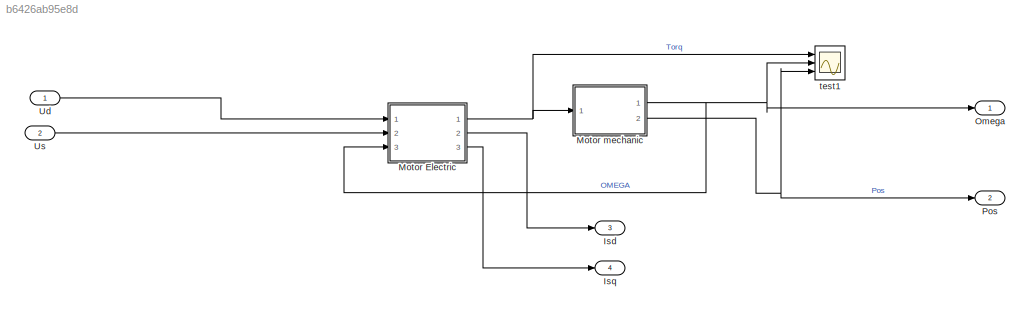
MODEL slx_b6426ab95e8d
KIND library
CONFIG AbsTol = auto
CONFIG FixedStep = auto
CONFIG MaxStep = auto
CONFIG MinStep = auto
CONFIG RelTol = 1e-3
CONFIG SampleTimeConstraint = Unconstrained
CONFIG Solver = ode45
CONFIG SolverMode = Auto
CONFIG SolverName = ode45
CONFIG StartTime = 0.0
CONFIG StopTime = 10.0
BLOCK [Outport] Isd
  IconDisplay = Port number
  Port = 3
BLOCK [Outport] Isq
  IconDisplay = Port number
  Port = 4
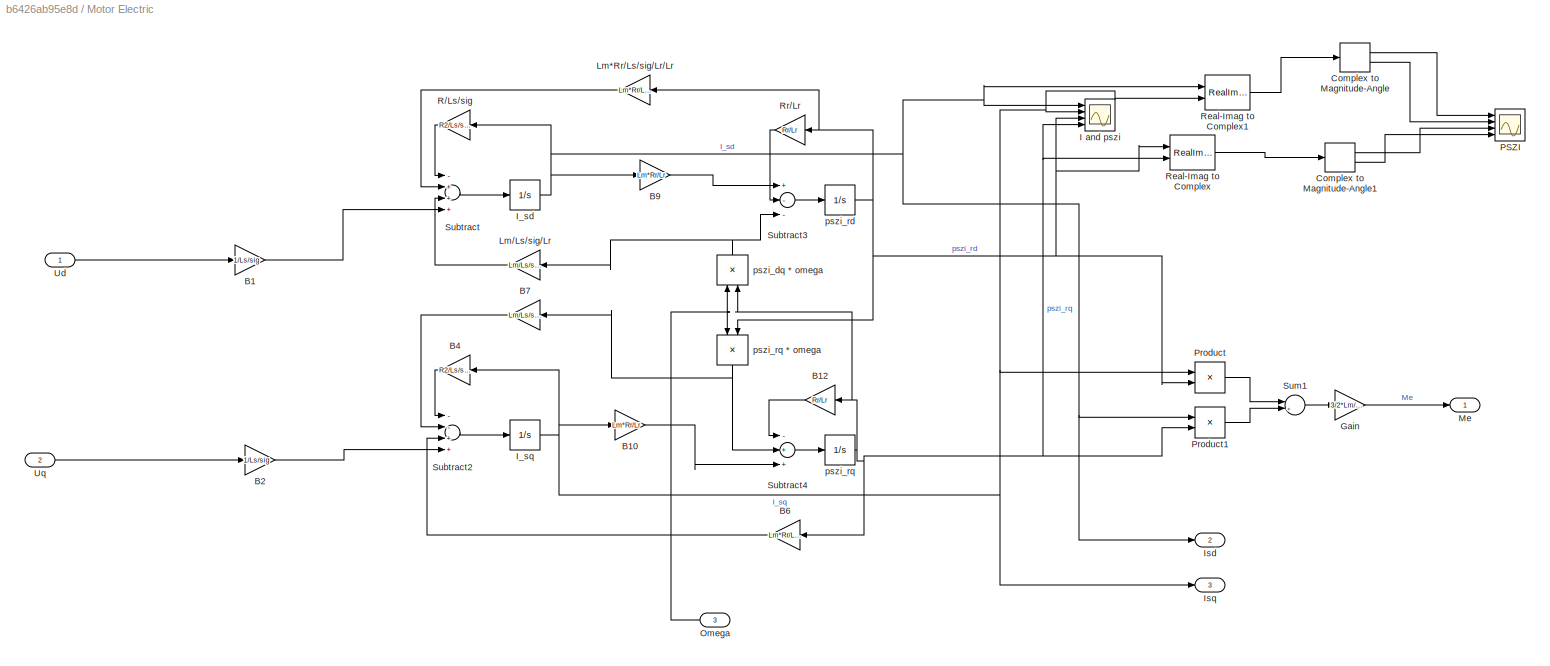
BLOCK [SubSystem] Motor Electric
  Ports = [3, 3]
  RequestExecContextInheritance = off
  Variant = off
BLOCK [Gain] Motor Electric/B1
  Gain = 1/Ls/sig
  Multiplication = Matrix(K*u)
  OutDataTypeStr = Inherit: Inherit via internal rule
  ParamDataTypeStr = Inherit: Inherit via internal rule
  SaturateOnIntegerOverflow = off
BLOCK [Gain] Motor Electric/B10
  Gain = Lm*Rr/Lr
  Multiplication = Matrix(K*u)
  OutDataTypeStr = Inherit: Inherit via internal rule
  ParamDataTypeStr = Inherit: Inherit via internal rule
  SaturateOnIntegerOverflow = off
BLOCK [Gain] Motor Electric/B12
  Gain = Rr/Lr
  Multiplication = Matrix(K*u)
  OutDataTypeStr = Inherit: Inherit via internal rule
  ParamDataTypeStr = Inherit: Inherit via internal rule
  SaturateOnIntegerOverflow = off
BLOCK [Gain] Motor Electric/B2
  Gain = 1/Ls/sig
  Multiplication = Matrix(K*u)
  OutDataTypeStr = Inherit: Inherit via internal rule
  ParamDataTypeStr = Inherit: Inherit via internal rule
  SaturateOnIntegerOverflow = off
BLOCK [Gain] Motor Electric/B4
  Gain = R2/Ls/sig
  Multiplication = Matrix(K*u)
  OutDataTypeStr = Inherit: Inherit via internal rule
  ParamDataTypeStr = Inherit: Inherit via internal rule
  SaturateOnIntegerOverflow = off
BLOCK [Gain] Motor Electric/B6
  Gain = Lm*Rr/Ls/sig/Lr/Lr
  Multiplication = Matrix(K*u)
  OutDataTypeStr = Inherit: Inherit via internal rule
  ParamDataTypeStr = Inherit: Inherit via internal rule
  SaturateOnIntegerOverflow = off
BLOCK [Gain] Motor Electric/B7
  Gain = Lm/Ls/sig/Lr
  Multiplication = Matrix(K*u)
  OutDataTypeStr = Inherit: Inherit via internal rule
  ParamDataTypeStr = Inherit: Inherit via internal rule
  SaturateOnIntegerOverflow = off
BLOCK [Gain] Motor Electric/B9
  Gain = Lm*Rr/Lr
  Multiplication = Matrix(K*u)
  OutDataTypeStr = Inherit: Inherit via internal rule
  ParamDataTypeStr = Inherit: Inherit via internal rule
  SaturateOnIntegerOverflow = off
BLOCK [ComplexToMagnitudeAngle] Motor Electric/Complex to Magnitude-Angle
  Ports = [1, 2]
BLOCK [ComplexToMagnitudeAngle] Motor Electric/Complex to Magnitude-Angle1
  Ports = [1, 2]
BLOCK [Gain] Motor Electric/Gain
  Gain = 3/2*Lm/Lr
  OutDataTypeStr = Inherit: Inherit via internal rule
  ParamDataTypeStr = Inherit: Inherit via internal rule
  SaturateOnIntegerOverflow = off
BLOCK [Scope] Motor Electric/I and pszi
  NumInputPorts = 4
  Ports = [4]
  ScopeSpecificationString = Simulink.scopes.TimeScopeBlockCfg('CurrentConfiguration', extmgr.ConfigurationSet(extmgr.Configuration('Core','General UI',true),extmgr.Configuration('Core','Source UI',true),extmgr.Configuration('Sources','WiredSimulink',true),extmgr.Configuration('Visuals','Time Domain',true,'SerializedDisplays',{struct('MinYLimReal','-0.35721','MaxYLimReal','0.2837','YLabelReal','','MinYLimMag','0.00000','MaxYL...<+1422ch>
BLOCK [Integrator] Motor Electric/I_sd
  Ports = [1, 1]
BLOCK [Integrator] Motor Electric/I_sq
  Ports = [1, 1]
BLOCK [Outport] Motor Electric/Isd
  IconDisplay = Port number
  Port = 2
BLOCK [Outport] Motor Electric/Isq
  IconDisplay = Port number
  Port = 3
BLOCK [Gain] Motor Electric/Lm*Rr//Ls//sig//Lr//Lr
  Gain = Lm*Rr/Ls/sig/Lr/Lr
  Multiplication = Matrix(K*u)
  OutDataTypeStr = Inherit: Inherit via internal rule
  ParamDataTypeStr = Inherit: Inherit via internal rule
  SaturateOnIntegerOverflow = off
BLOCK [Gain] Motor Electric/Lm//Ls//sig//Lr
  Gain = Lm/Ls/sig/Lr
  Multiplication = Matrix(K*u)
  OutDataTypeStr = Inherit: Inherit via internal rule
  ParamDataTypeStr = Inherit: Inherit via internal rule
  SaturateOnIntegerOverflow = off
BLOCK [Outport] Motor Electric/Me
  IconDisplay = Port number
BLOCK [Inport] Motor Electric/Omega
  IconDisplay = Port number
  Port = 3
BLOCK [Scope] Motor Electric/PSZI
  NumInputPorts = 4
  Ports = [4]
  ScopeSpecificationString = Simulink.scopes.TimeScopeBlockCfg('CurrentConfiguration', extmgr.ConfigurationSet(extmgr.Configuration('Core','General UI',true),extmgr.Configuration('Core','Source UI',true),extmgr.Configuration('Sources','WiredSimulink',true,'DataLoggingVariableName','ScopeData2'),extmgr.Configuration('Visuals','Time Domain',true,'SerializedDisplays',{struct('MinYLimReal','-15.09969','MaxYLimReal','104.48314','Y...<+1472ch>
BLOCK [Product] Motor Electric/Product
  InputSameDT = off
  OutDataTypeStr = Inherit: Inherit via internal rule
  Ports = [2, 1]
  RndMeth = Floor
  SaturateOnIntegerOverflow = off
BLOCK [Product] Motor Electric/Product1
  InputSameDT = off
  OutDataTypeStr = Inherit: Inherit via internal rule
  Ports = [2, 1]
  RndMeth = Floor
  SaturateOnIntegerOverflow = off
BLOCK [Gain] Motor Electric/R//Ls//sig
  Gain = R2/Ls/sig
  Multiplication = Matrix(K*u)
  OutDataTypeStr = Inherit: Inherit via internal rule
  ParamDataTypeStr = Inherit: Inherit via internal rule
  SaturateOnIntegerOverflow = off
BLOCK [RealImagToComplex] Motor Electric/Real-Imag to Complex
  Ports = [2, 1]
BLOCK [RealImagToComplex] Motor Electric/Real-Imag to Complex1
  Ports = [2, 1]
BLOCK [Gain] Motor Electric/Rr//Lr
  Gain = Rr/Lr
  Multiplication = Matrix(K*u)
  OutDataTypeStr = Inherit: Inherit via internal rule
  ParamDataTypeStr = Inherit: Inherit via internal rule
  SaturateOnIntegerOverflow = off
BLOCK [Sum] Motor Electric/Subtract
  InputSameDT = off
  Inputs = -+++
  OutDataTypeStr = Inherit: Inherit via internal rule
  Ports = [4, 1]
  SaturateOnIntegerOverflow = off
BLOCK [Sum] Motor Electric/Subtract2
  InputSameDT = off
  Inputs = --++
  OutDataTypeStr = Inherit: Inherit via internal rule
  Ports = [4, 1]
  SaturateOnIntegerOverflow = off
BLOCK [Sum] Motor Electric/Subtract3
  InputSameDT = off
  Inputs = +--
  OutDataTypeStr = Inherit: Inherit via internal rule
  Ports = [3, 1]
  SaturateOnIntegerOverflow = off
BLOCK [Sum] Motor Electric/Subtract4
  InputSameDT = off
  Inputs = -++
  OutDataTypeStr = Inherit: Inherit via internal rule
  Ports = [3, 1]
  SaturateOnIntegerOverflow = off
BLOCK [Sum] Motor Electric/Sum1
  IconShape = round
  InputSameDT = off
  Inputs = |+-|
  OutDataTypeStr = Inherit: Inherit via internal rule
  Ports = [2, 1]
  SaturateOnIntegerOverflow = off
BLOCK [Inport] Motor Electric/Ud
  IconDisplay = Port number
BLOCK [Inport] Motor Electric/Uq
  IconDisplay = Port number
  Port = 2
BLOCK [Product] Motor Electric/pszi_dq * omega
  InputSameDT = off
  OutDataTypeStr = Inherit: Inherit via internal rule
  Ports = [2, 1]
  RndMeth = Floor
  SaturateOnIntegerOverflow = off
BLOCK [Integrator] Motor Electric/pszi_rd
  Ports = [1, 1]
BLOCK [Integrator] Motor Electric/pszi_rq 
  Ports = [1, 1]
BLOCK [Product] Motor Electric/pszi_rq * omega
  InputSameDT = off
  OutDataTypeStr = Inherit: Inherit via internal rule
  Ports = [2, 1]
  RndMeth = Floor
  SaturateOnIntegerOverflow = off
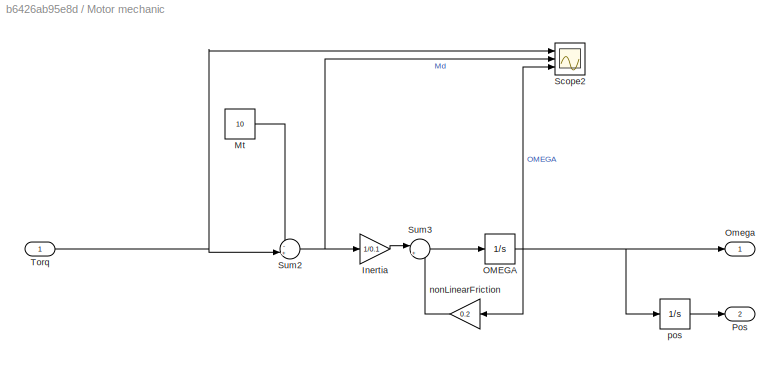
BLOCK [SubSystem] Motor mechanic
  Ports = [1, 2]
  RequestExecContextInheritance = off
  Variant = off
BLOCK [Gain] Motor mechanic/Inertia
  Gain = 1/0.1
  OutDataTypeStr = Inherit: Inherit via internal rule
  ParamDataTypeStr = Inherit: Inherit via internal rule
  SaturateOnIntegerOverflow = off
BLOCK [Constant] Motor mechanic/Mt
  Value = 10
BLOCK [Integrator] Motor mechanic/OMEGA
  Ports = [1, 1]
BLOCK [Outport] Motor mechanic/Omega
  IconDisplay = Port number
BLOCK [Outport] Motor mechanic/Pos
  IconDisplay = Port number
  Port = 2
BLOCK [Scope] Motor mechanic/Scope2
  NumInputPorts = 3
  Ports = [3]
  ScopeSpecificationString = Simulink.scopes.TimeScopeBlockCfg('CurrentConfiguration', extmgr.ConfigurationSet(extmgr.Configuration('Core','General UI',true),extmgr.Configuration('Core','Source UI',true),extmgr.Configuration('Sources','WiredSimulink',true,'DataLoggingVariableName','ScopeData2'),extmgr.Configuration('Visuals','Time Domain',true,'SerializedDisplays',{struct('MinYLimReal','90.00000','MaxYLimReal','110.00000','YL...<+2799ch>
BLOCK [Sum] Motor mechanic/Sum2
  IconShape = round
  InputSameDT = off
  Inputs = -+|
  OutDataTypeStr = Inherit: Inherit via internal rule
  Ports = [2, 1]
  SaturateOnIntegerOverflow = off
BLOCK [Sum] Motor mechanic/Sum3
  IconShape = round
  InputSameDT = off
  Inputs = |+-
  OutDataTypeStr = Inherit: Inherit via internal rule
  Ports = [2, 1]
  SaturateOnIntegerOverflow = off
BLOCK [Inport] Motor mechanic/Torq 
  IconDisplay = Port number
BLOCK [Gain] Motor mechanic/nonLinearFriction
  Gain = 0.2
  OutDataTypeStr = Inherit: Inherit via internal rule
  ParamDataTypeStr = Inherit: Inherit via internal rule
  SaturateOnIntegerOverflow = off
BLOCK [Integrator] Motor mechanic/pos
  Ports = [1, 1]
  WrapState = on
BLOCK [Outport] Omega
  IconDisplay = Port number
BLOCK [Outport] Pos
  IconDisplay = Port number
  Port = 2
BLOCK [Inport] Ud
  IconDisplay = Port number
BLOCK [Inport] Us
  IconDisplay = Port number
  Port = 2
BLOCK [Scope] test1
  NumInputPorts = 3
  Ports = [3]
  ScopeSpecificationString = Simulink.scopes.TimeScopeBlockCfg('CurrentConfiguration', extmgr.ConfigurationSet(extmgr.Configuration('Core','General UI',true),extmgr.Configuration('Core','Source UI',true),extmgr.Configuration('Sources','WiredSimulink',true,'DataLoggingVariableName','ScopeData1'),extmgr.Configuration('Visuals','Time Domain',true,'SerializedDisplays',{struct('MinYLimReal','-59.36898','MaxYLimReal','236.90336','Y...<+1487ch>
LINE Motor Electric/B10:1 -> Motor Electric/Subtract4:3
LINE Motor Electric/B12:1 -> Motor Electric/Subtract4:1
LINE Motor Electric/B1:1 -> Motor Electric/Subtract:4
LINE Motor Electric/B2:1 -> Motor Electric/Subtract2:4
LINE Motor Electric/B4:1 -> Motor Electric/Subtract2:1
LINE Motor Electric/B6:1 -> Motor Electric/Subtract2:3
LINE Motor Electric/B7:1 -> Motor Electric/Subtract2:2
LINE Motor Electric/B9:1 -> Motor Electric/Subtract3:1
LINE Motor Electric/Complex to Magnitude-Angle1:1 -> Motor Electric/PSZI:3
LINE Motor Electric/Complex to Magnitude-Angle1:2 -> Motor Electric/PSZI:4
LINE Motor Electric/Complex to Magnitude-Angle:1 -> Motor Electric/PSZI:1
LINE Motor Electric/Complex to Magnitude-Angle:2 -> Motor Electric/PSZI:2
LINE Motor Electric/Gain:1 -> Motor Electric/Me:1
NET Motor Electric/I_sd:1 -> Motor Electric/B9:1, Motor Electric/I and pszi:1, Motor Electric/Isd:1, Motor Electric/Product1:1, Motor Electric/R//Ls//sig:1, Motor Electric/Real-Imag to Complex1:1
NET Motor Electric/I_sq:1 -> Motor Electric/B10:1, Motor Electric/B4:1, Motor Electric/I and pszi:2, Motor Electric/Isq:1, Motor Electric/Product:1, Motor Electric/Real-Imag to Complex1:2
LINE Motor Electric/Lm*Rr//Ls//sig//Lr//Lr:1 -> Motor Electric/Subtract:2
LINE Motor Electric/Lm//Ls//sig//Lr:1 -> Motor Electric/Subtract:3
NET Motor Electric/Omega:1 -> Motor Electric/pszi_dq * omega:1, Motor Electric/pszi_rq * omega:1
LINE Motor Electric/Product1:1 -> Motor Electric/Sum1:2
LINE Motor Electric/Product:1 -> Motor Electric/Sum1:1
LINE Motor Electric/R//Ls//sig:1 -> Motor Electric/Subtract:1
LINE Motor Electric/Real-Imag to Complex1:1 -> Motor Electric/Complex to Magnitude-Angle:1
LINE Motor Electric/Real-Imag to Complex:1 -> Motor Electric/Complex to Magnitude-Angle1:1
LINE Motor Electric/Rr//Lr:1 -> Motor Electric/Subtract3:2
LINE Motor Electric/Subtract2:1 -> Motor Electric/I_sq:1
LINE Motor Electric/Subtract3:1 -> Motor Electric/pszi_rd:1
LINE Motor Electric/Subtract4:1 -> Motor Electric/pszi_rq :1
LINE Motor Electric/Subtract:1 -> Motor Electric/I_sd:1
LINE Motor Electric/Sum1:1 -> Motor Electric/Gain:1
LINE Motor Electric/Ud:1 -> Motor Electric/B1:1
LINE Motor Electric/Uq:1 -> Motor Electric/B2:1
NET Motor Electric/pszi_dq * omega:1 -> Motor Electric/Lm//Ls//sig//Lr:1, Motor Electric/Subtract3:3
NET Motor Electric/pszi_rd:1 -> Motor Electric/I and pszi:3, Motor Electric/Lm*Rr//Ls//sig//Lr//Lr:1, Motor Electric/Product:2, Motor Electric/Real-Imag to Complex:1, Motor Electric/Rr//Lr:1, Motor Electric/pszi_rq * omega:2
NET Motor Electric/pszi_rq * omega:1 -> Motor Electric/B7:1, Motor Electric/Subtract4:2
NET Motor Electric/pszi_rq :1 -> Motor Electric/B12:1, Motor Electric/B6:1, Motor Electric/I and pszi:4, Motor Electric/Product1:2, Motor Electric/Real-Imag to Complex:2, Motor Electric/pszi_dq * omega:2
NET Motor Electric:1 -> Motor mechanic:1, test1:1
LINE Motor Electric:2 -> Isd:1
LINE Motor Electric:3 -> Isq:1
LINE Motor mechanic/Inertia:1 -> Motor mechanic/Sum3:1
LINE Motor mechanic/Mt:1 -> Motor mechanic/Sum2:1
NET Motor mechanic/OMEGA:1 -> Motor mechanic/Omega:1, Motor mechanic/Scope2:3, Motor mechanic/nonLinearFriction:1, Motor mechanic/pos:1
NET Motor mechanic/Sum2:1 -> Motor mechanic/Inertia:1, Motor mechanic/Scope2:2
LINE Motor mechanic/Sum3:1 -> Motor mechanic/OMEGA:1
NET Motor mechanic/Torq :1 -> Motor mechanic/Scope2:1, Motor mechanic/Sum2:2
LINE Motor mechanic/nonLinearFriction:1 -> Motor mechanic/Sum3:2
LINE Motor mechanic/pos:1 -> Motor mechanic/Pos:1
NET Motor mechanic:1 -> Motor Electric:3, Omega:1, test1:2
NET Motor mechanic:2 -> Pos:1, test1:3
LINE Ud:1 -> Motor Electric:1
LINE Us:1 -> Motor Electric:2
note: NET lines group one-source signal fan-out (src -> all destinations, sorted); 1:1 wires keep LINE
